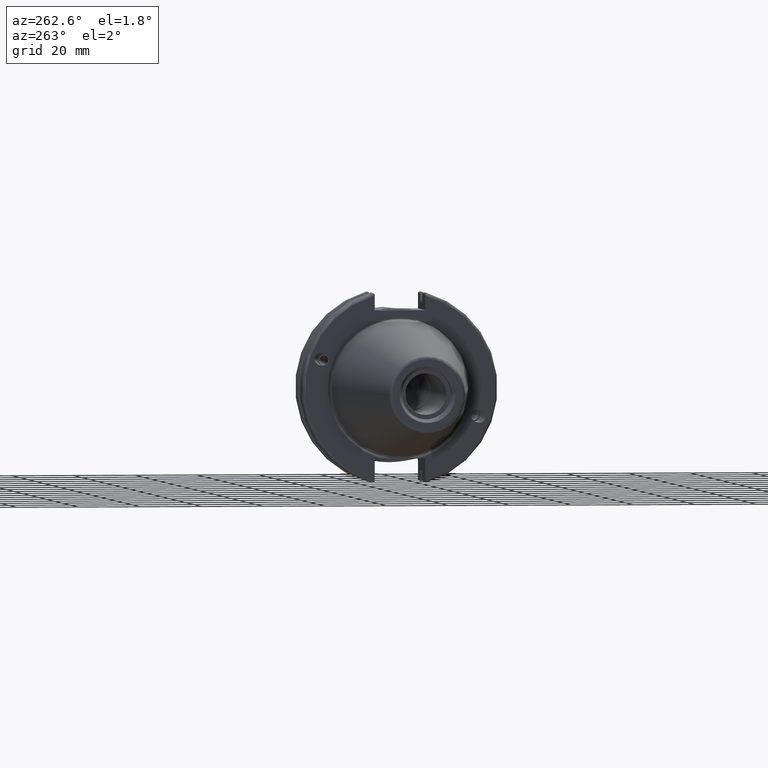
[diagram: clean part render]
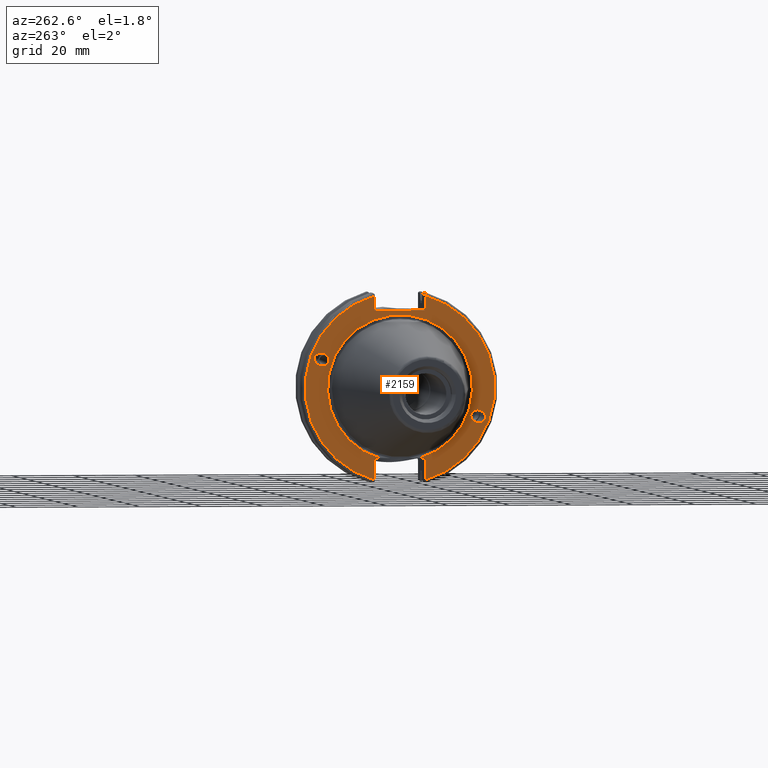
[diagram: same view with one face highlighted and labeled with its STEP entity id]
A machine part, auxiliary view. The second image highlights one B-rep face of the part: STEP entity #2159.
In plain terms, the highlighted planar face has unit normal (-1, 0, 0).
Its self-contained STEP definition (entity closure, byte-faithful):
#41=ELLIPSE('',#2380,2.4415491775229,1.99999999999999);
#50=ELLIPSE('',#2428,2.4415491775229,1.99999999999999);
#127=FACE_BOUND('',#571,.T.);
#128=FACE_BOUND('',#572,.T.);
#150=PLANE('',#2445);
#227=LINE('',#4031,#322);
#231=LINE('',#4077,#326);
#239=LINE('',#4113,#334);
#241=LINE('',#4137,#336);
#242=LINE('',#4141,#337);
#243=LINE('',#4143,#338);
#244=LINE('',#4146,#339);
#322=VECTOR('',#3023,10.);
#326=VECTOR('',#3035,10.);
#334=VECTOR('',#3045,10.);
#336=VECTOR('',#3055,10.);
#337=VECTOR('',#3058,10.);
#338=VECTOR('',#3059,10.);
#339=VECTOR('',#3062,10.);
#453=FACE_OUTER_BOUND('',#570,.T.);
#570=EDGE_LOOP('',(#1866,#1867,#1868,#1869,#1870,#1871,#1872,#1873,#1874,
#1875));
#571=EDGE_LOOP('',(#1876));
#572=EDGE_LOOP('',(#1877));
#752=CIRCLE('',#2444,30.75);
#753=CIRCLE('',#2446,30.75);
#754=CIRCLE('',#2447,23.5);
#919=VERTEX_POINT('',#3751);
#964=VERTEX_POINT('',#3962);
#977=VERTEX_POINT('',#4023);
#978=VERTEX_POINT('',#4030);
#984=VERTEX_POINT('',#4074);
#985=VERTEX_POINT('',#4076);
#993=VERTEX_POINT('',#4105);
#994=VERTEX_POINT('',#4112);
#997=VERTEX_POINT('',#4138);
#998=VERTEX_POINT('',#4140);
#999=VERTEX_POINT('',#4142);
#1000=VERTEX_POINT('',#4144);
#1204=EDGE_CURVE('',#919,#919,#41,.T.);
#1265=EDGE_CURVE('',#964,#964,#50,.T.);
#1283=EDGE_CURVE('',#978,#977,#227,.T.);
#1293=EDGE_CURVE('',#985,#984,#231,.T.);
#1305=EDGE_CURVE('',#994,#993,#239,.T.);
#1310=EDGE_CURVE('',#985,#993,#752,.T.);
#1311=EDGE_CURVE('',#984,#978,#241,.T.);
#1312=EDGE_CURVE('',#997,#977,#753,.T.);
#1313=EDGE_CURVE('',#997,#998,#242,.T.);
#1314=EDGE_CURVE('',#998,#999,#243,.T.);
#1315=EDGE_CURVE('',#999,#1000,#754,.T.);
#1316=EDGE_CURVE('',#1000,#994,#244,.T.);
#1866=ORIENTED_EDGE('',*,*,#1310,.F.);
#1867=ORIENTED_EDGE('',*,*,#1293,.T.);
#1868=ORIENTED_EDGE('',*,*,#1311,.T.);
#1869=ORIENTED_EDGE('',*,*,#1283,.T.);
#1870=ORIENTED_EDGE('',*,*,#1312,.F.);
#1871=ORIENTED_EDGE('',*,*,#1313,.T.);
#1872=ORIENTED_EDGE('',*,*,#1314,.T.);
#1873=ORIENTED_EDGE('',*,*,#1315,.T.);
#1874=ORIENTED_EDGE('',*,*,#1316,.T.);
#1875=ORIENTED_EDGE('',*,*,#1305,.T.);
#1876=ORIENTED_EDGE('',*,*,#1204,.T.);
#1877=ORIENTED_EDGE('',*,*,#1265,.T.);
#2159=ADVANCED_FACE('',(#453,#127,#128),#150,.T.);
#2380=AXIS2_PLACEMENT_3D('',#3753,#2886,#2887);
#2428=AXIS2_PLACEMENT_3D('',#3964,#2998,#2999);
#2444=AXIS2_PLACEMENT_3D('',#4135,#3051,#3052);
#2445=AXIS2_PLACEMENT_3D('',#4136,#3053,#3054);
#2446=AXIS2_PLACEMENT_3D('',#4139,#3056,#3057);
#2447=AXIS2_PLACEMENT_3D('',#4145,#3060,#3061);
#2886=DIRECTION('center_axis',(1.,0.,0.));
#2887=DIRECTION('ref_axis',(0.,-0.939692620785908,-0.342020143325669));
#2998=DIRECTION('center_axis',(1.,0.,0.));
#2999=DIRECTION('ref_axis',(0.,0.939692620785908,0.342020143325669));
#3023=DIRECTION('',(0.,0.,1.));
#3035=DIRECTION('',(0.,0.,-1.));
#3045=DIRECTION('',(0.,0.,-1.));
#3051=DIRECTION('center_axis',(1.,0.,0.));
#3052=DIRECTION('ref_axis',(0.,-1.,1.60812264967664E-16));
#3053=DIRECTION('center_axis',(-1.,0.,0.));
#3054=DIRECTION('ref_axis',(0.,0.,1.));
#3055=DIRECTION('',(0.,1.,0.));
#3056=DIRECTION('center_axis',(1.,0.,0.));
#3057=DIRECTION('ref_axis',(0.,1.,1.60812264967664E-16));
#3058=DIRECTION('',(0.,0.,1.));
#3059=DIRECTION('',(0.,-1.,0.));
#3060=DIRECTION('center_axis',(1.,0.,0.));
#3061=DIRECTION('ref_axis',(0.,0.,-1.));
#3062=DIRECTION('',(0.,-1.,0.));
#3751=CARTESIAN_POINT('',(1.,-23.0773950158154,-8.39948487016));
#3753=CARTESIAN_POINT('Origin',(1.,-25.3717007612195,-9.23454386979305));
#3962=CARTESIAN_POINT('',(1.,23.0773950158154,8.39948487016001));
#3964=CARTESIAN_POINT('Origin',(1.,25.3717007612195,9.23454386979306));
#4023=CARTESIAN_POINT('',(1.,8.19,29.6392712461019));
#4030=CARTESIAN_POINT('',(1.,8.19,25.));
#4031=CARTESIAN_POINT('',(1.,8.19,12.5));
#4074=CARTESIAN_POINT('',(1.,-8.19,25.));
#4076=CARTESIAN_POINT('',(1.,-8.18999999999999,29.6392712461019));
#4077=CARTESIAN_POINT('',(1.,-8.18999999999999,12.5));
#4105=CARTESIAN_POINT('',(1.,-8.19,-29.6392712461019));
#4112=CARTESIAN_POINT('',(1.,-8.19,-22.6));
#4113=CARTESIAN_POINT('',(1.,-8.19,-11.3));
#4135=CARTESIAN_POINT('Origin',(1.,0.,0.));
#4136=CARTESIAN_POINT('Origin',(1.,31.75,0.));
#4137=CARTESIAN_POINT('',(1.,15.875,25.));
#4138=CARTESIAN_POINT('',(1.,8.18999999999999,-29.6392712461019));
#4139=CARTESIAN_POINT('Origin',(1.,0.,0.));
#4140=CARTESIAN_POINT('',(0.999999999999998,8.19,-22.6));
#4141=CARTESIAN_POINT('',(1.,8.18999999999999,-11.3));
#4142=CARTESIAN_POINT('',(0.999999999999997,6.4412731660752,-22.6));
#4143=CARTESIAN_POINT('',(1.,15.875,-22.6));
#4144=CARTESIAN_POINT('',(1.,-6.44127316607517,-22.6));
#4145=CARTESIAN_POINT('Origin',(0.999999999999996,0.,0.));
#4146=CARTESIAN_POINT('',(1.,15.875,-22.6));